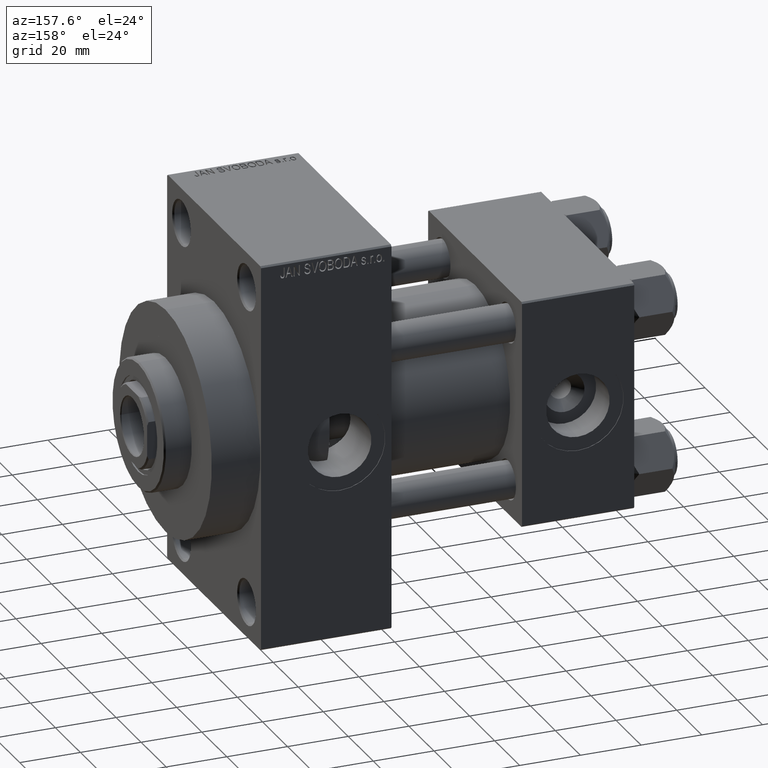
[diagram: clean part render]
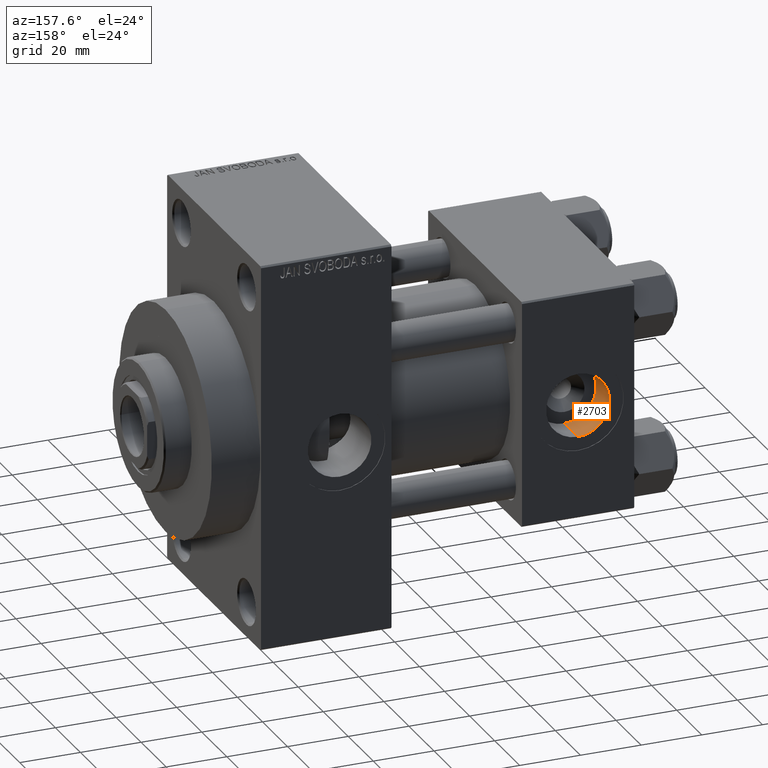
[diagram: same view with one face highlighted and labeled with its STEP entity id]
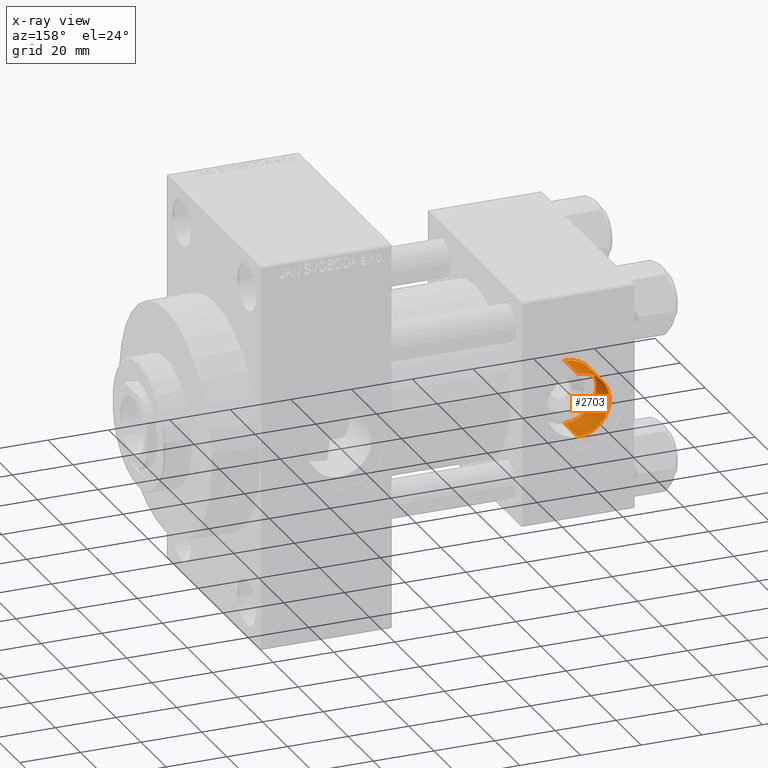
[diagram: x-ray of the same camera — body ghosted, the highlighted face saturated]
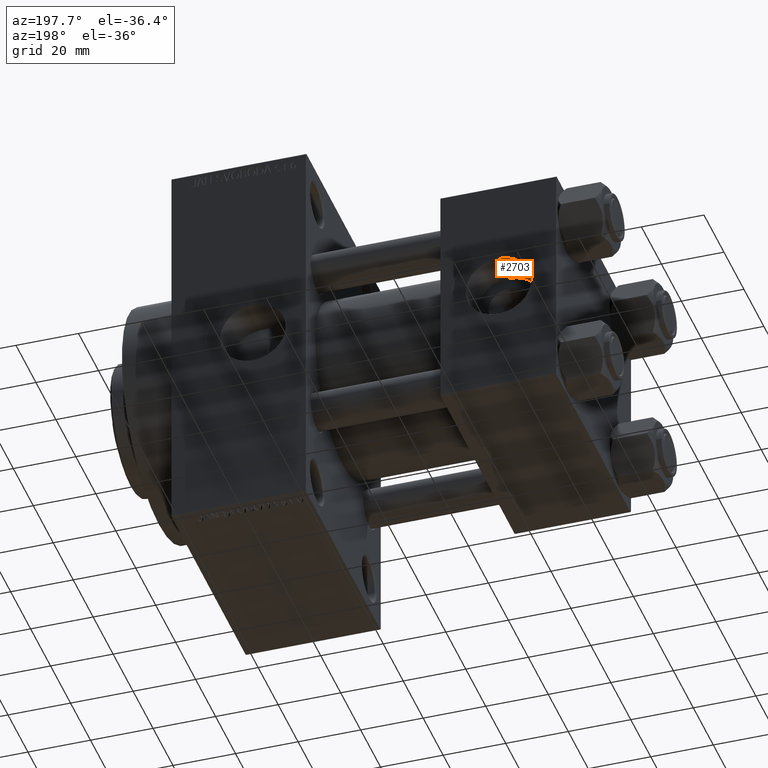
[diagram: same view with one face highlighted and labeled with its STEP entity id]
A machine part, auxiliary view. The second image highlights one B-rep face of the part: STEP entity #2703.
The next image is the same camera in x-ray: the body ghosted, the highlighted face saturated — about 0% of this face is hidden behind the body in this view.
A second angle (auxiliary view) of the same face is appended — the face is thin or edge-on in the first view.
In plain terms, the highlighted cylindrical surface (edge-blend (fillet) strip) has radius 10.48 mm, axis along (0, 1, 0).
Its self-contained STEP definition (entity closure, byte-faithful):
#412 = CARTESIAN_POINT ( 'NONE',  ( 18.50000000000000000, 26.49999999999999289, 10.48000000000000043 ) ) ;
#2703 = ADVANCED_FACE ( 'NONE', ( #16809 ), #5591, .F. ) ;
#3709 = VECTOR ( 'NONE', #39695, 1000.000000000000000 ) ;
#4543 = CARTESIAN_POINT ( 'NONE',  ( 18.50000000000000000, 37.29999999999999005, -10.48000000000000043 ) ) ;
#5321 = DIRECTION ( 'NONE',  ( 0.000000000000000000, 1.000000000000000000, 0.000000000000000000 ) ) ;
#5591 = CYLINDRICAL_SURFACE ( 'NONE', #13156, 10.48000000000000043 ) ;
#6310 = ORIENTED_EDGE ( 'NONE', *, *, #28436, .F. ) ;
#6524 = AXIS2_PLACEMENT_3D ( 'NONE', #11547, #18475, #14906 ) ;
#7990 = VERTEX_POINT ( 'NONE', #412 ) ;
#9419 = CARTESIAN_POINT ( 'NONE',  ( 18.50000000000000000, 26.49999999999999289, 0.000000000000000000 ) ) ;
#10928 = EDGE_CURVE ( 'NONE', #40886, #11185, #44482, .T. ) ;
#11185 = VERTEX_POINT ( 'NONE', #19763 ) ;
#11341 = CARTESIAN_POINT ( 'NONE',  ( 18.50000000000000000, 26.49999999999999289, -10.48000000000000043 ) ) ;
#11547 = CARTESIAN_POINT ( 'NONE',  ( 18.50000000000000000, 26.49999999999999289, 0.000000000000000000 ) ) ;
#12477 = CARTESIAN_POINT ( 'NONE',  ( 18.50000000000000000, 37.29999999999999005, 0.000000000000000000 ) ) ;
#13156 = AXIS2_PLACEMENT_3D ( 'NONE', #9419, #20141, #23491 ) ;
#14906 = DIRECTION ( 'NONE',  ( 0.000000000000000000, 0.000000000000000000, 1.000000000000000000 ) ) ;
#15180 = ORIENTED_EDGE ( 'NONE', *, *, #28432, .T. ) ;
#16809 = FACE_OUTER_BOUND ( 'NONE', #46140, .T. ) ;
#17979 = DIRECTION ( 'NONE',  ( -0.000000000000000000, 1.000000000000000000, -0.000000000000000000 ) ) ;
#18475 = DIRECTION ( 'NONE',  ( 0.000000000000000000, 1.000000000000000000, 0.000000000000000000 ) ) ;
#19763 = CARTESIAN_POINT ( 'NONE',  ( 18.50000000000000000, 37.29999999999999005, 10.48000000000000043 ) ) ;
#20141 = DIRECTION ( 'NONE',  ( -0.000000000000000000, 1.000000000000000000, -0.000000000000000000 ) ) ;
#21557 = CARTESIAN_POINT ( 'NONE',  ( 18.50000000000000000, 26.49999999999999289, -10.48000000000000043 ) ) ;
#21988 = VERTEX_POINT ( 'NONE', #11341 ) ;
#22355 = AXIS2_PLACEMENT_3D ( 'NONE', #12477, #5321, #38030 ) ;
#23491 = DIRECTION ( 'NONE',  ( 0.000000000000000000, 0.000000000000000000, 1.000000000000000000 ) ) ;
#24914 = CARTESIAN_POINT ( 'NONE',  ( 18.50000000000000000, 26.49999999999999289, 10.48000000000000043 ) ) ;
#28432 = EDGE_CURVE ( 'NONE', #21988, #40886, #36128, .T. ) ;
#28436 = EDGE_CURVE ( 'NONE', #7990, #11185, #32078, .T. ) ;
#32078 = LINE ( 'NONE', #24914, #3709 ) ;
#32681 = VECTOR ( 'NONE', #17979, 1000.000000000000000 ) ;
#32758 = ORIENTED_EDGE ( 'NONE', *, *, #38699, .F. ) ;
#33189 = CIRCLE ( 'NONE', #6524, 10.48000000000000043 ) ;
#34465 = ORIENTED_EDGE ( 'NONE', *, *, #10928, .T. ) ;
#36128 = LINE ( 'NONE', #21557, #32681 ) ;
#38030 = DIRECTION ( 'NONE',  ( 0.000000000000000000, 0.000000000000000000, 1.000000000000000000 ) ) ;
#38699 = EDGE_CURVE ( 'NONE', #21988, #7990, #33189, .T. ) ;
#39695 = DIRECTION ( 'NONE',  ( -0.000000000000000000, 1.000000000000000000, -0.000000000000000000 ) ) ;
#40886 = VERTEX_POINT ( 'NONE', #4543 ) ;
#44482 = CIRCLE ( 'NONE', #22355, 10.48000000000000043 ) ;
#46140 = EDGE_LOOP ( 'NONE', ( #32758, #15180, #34465, #6310 ) ) ;